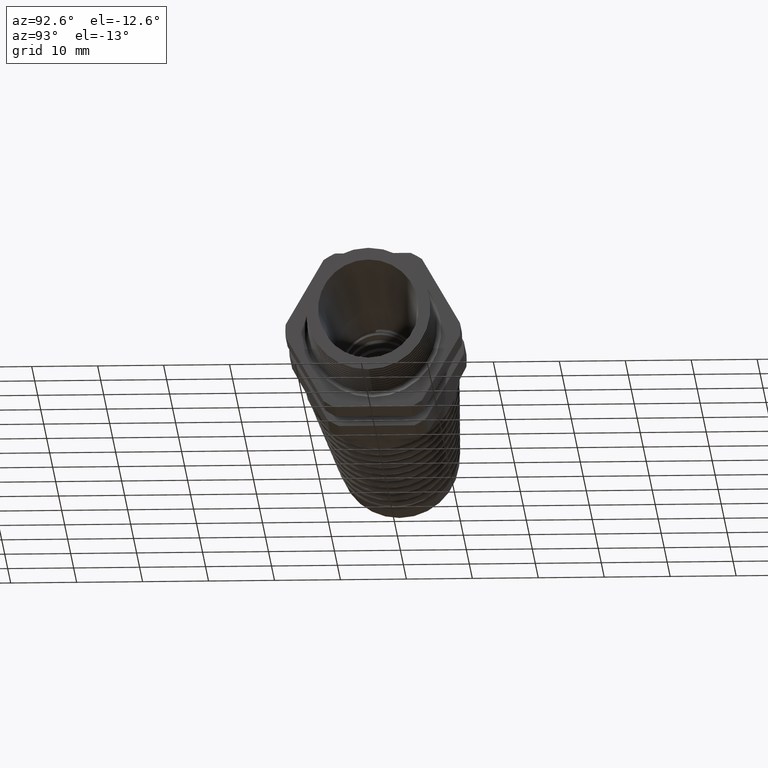
[diagram: clean part render]
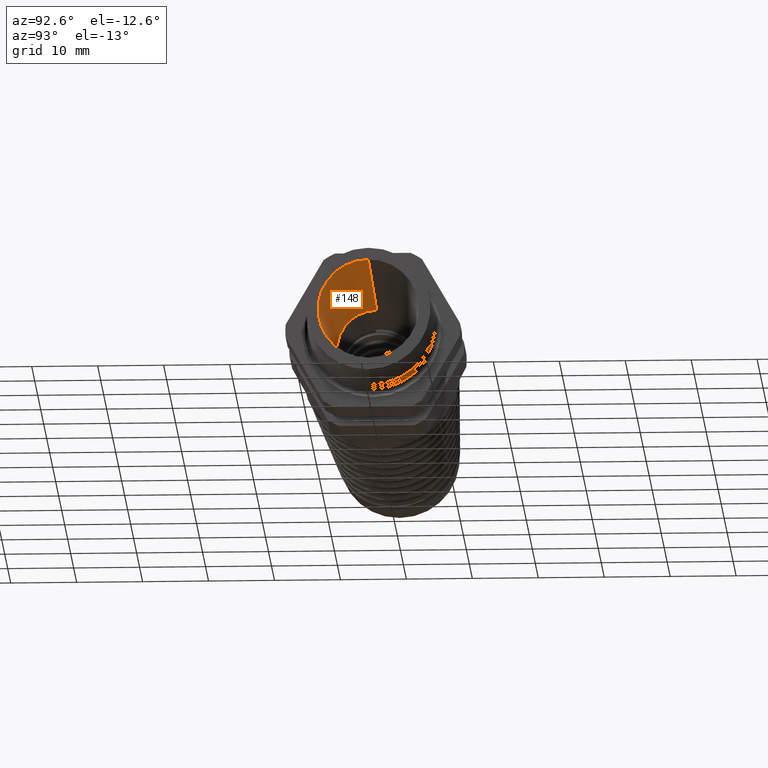
[diagram: same view with one face highlighted and labeled with its STEP entity id]
A machine part, auxiliary view. The second image highlights one B-rep face of the part: STEP entity #148.
In plain terms, the highlighted conical surface has half-angle 3.385 deg.
Its self-contained STEP definition (entity closure, byte-faithful):
#148 = ADVANCED_FACE ( 'NONE', ( #1611 ), #1610, .F. ) ;
#149 = EDGE_LOOP ( 'NONE', ( #150, #154, #230, #232 ) ) ;
#150 = ORIENTED_EDGE ( 'NONE', *, *, #151, .F. ) ;
#151 = EDGE_CURVE ( 'NONE', #152, #153, #1476, .T. ) ;
#152 = VERTEX_POINT ( 'NONE', #1573 ) ;
#153 = VERTEX_POINT ( 'NONE', #1572 ) ;
#154 = ORIENTED_EDGE ( 'NONE', *, *, #155, .T. ) ;
#155 = EDGE_CURVE ( 'NONE', #152, #156, #1571, .T. ) ;
#156 = VERTEX_POINT ( 'NONE', #1605 ) ;
#198 = VERTEX_POINT ( 'NONE', #1552 ) ;
#230 = ORIENTED_EDGE ( 'NONE', *, *, #231, .T. ) ;
#231 = EDGE_CURVE ( 'NONE', #156, #198, #1420, .T. ) ;
#232 = ORIENTED_EDGE ( 'NONE', *, *, #233, .F. ) ;
#233 = EDGE_CURVE ( 'NONE', #153, #198, #1415, .T. ) ;
#1415 = LINE ( 'NONE', #1421, #1546 ) ;
#1416 = DIRECTION ( 'NONE',  ( 0.0000000000000000000, 0.0000000000000000000, -1.000000000000000000 ) ) ;
#1417 = DIRECTION ( 'NONE',  ( 1.000000000000000000, 0.0000000000000000000, 0.0000000000000000000 ) ) ;
#1418 = CARTESIAN_POINT ( 'NONE',  ( 0.2800000000000000300, 0.0000000000000000000, 0.0000000000000000000 ) ) ;
#1419 = AXIS2_PLACEMENT_3D ( 'NONE', #1418, #1417, #1416 ) ;
#1420 = CIRCLE ( 'NONE', #1419, 0.3000000000000000400 ) ;
#1421 = CARTESIAN_POINT ( 'NONE',  ( -0.8188188976377951400, 0.0000000000000000000, -0.2350000000000000100 ) ) ;
#1473 = DIRECTION ( 'NONE',  ( 0.0000000000000000000, 0.0000000000000000000, -1.000000000000000000 ) ) ;
#1474 = DIRECTION ( 'NONE',  ( 1.000000000000000000, 0.0000000000000000000, 0.0000000000000000000 ) ) ;
#1475 = AXIS2_PLACEMENT_3D ( 'NONE', #1609, #1474, #1473 ) ;
#1476 = CIRCLE ( 'NONE', #1475, 0.2350000000000000100 ) ;
#1477 = DIRECTION ( 'NONE',  ( 0.0000000000000000000, 0.0000000000000000000, -1.000000000000000000 ) ) ;
#1545 = DIRECTION ( 'NONE',  ( 0.9982549554271934500, 0.0000000000000000000, -0.05905119782910416000 ) ) ;
#1546 = VECTOR ( 'NONE', #1545, 39.37007874015748900 ) ;
#1552 = CARTESIAN_POINT ( 'NONE',  ( 0.2800000000000000300, 0.0000000000000000000, -0.3000000000000000400 ) ) ;
#1568 = DIRECTION ( 'NONE',  ( 0.9982549554271934500, 7.231686040722954100E-018, 0.05905119782910416000 ) ) ;
#1569 = VECTOR ( 'NONE', #1568, 39.37007874015748900 ) ;
#1570 = CARTESIAN_POINT ( 'NONE',  ( -0.8188188976377951400, 2.877919977996280400E-017, 0.2350000000000000100 ) ) ;
#1571 = LINE ( 'NONE', #1570, #1569 ) ;
#1572 = CARTESIAN_POINT ( 'NONE',  ( -0.8188188976377951400, 0.0000000000000000000, -0.2350000000000000100 ) ) ;
#1573 = CARTESIAN_POINT ( 'NONE',  ( -0.8188188976377951400, 2.877919977996280400E-017, 0.2350000000000000100 ) ) ;
#1605 = CARTESIAN_POINT ( 'NONE',  ( 0.2800000000000000300, 3.673940397442060700E-017, 0.3000000000000000400 ) ) ;
#1606 = DIRECTION ( 'NONE',  ( 1.000000000000000000, 0.0000000000000000000, 0.0000000000000000000 ) ) ;
#1607 = CARTESIAN_POINT ( 'NONE',  ( -0.8188188976377951400, 0.0000000000000000000, 0.0000000000000000000 ) ) ;
#1608 = AXIS2_PLACEMENT_3D ( 'NONE', #1607, #1606, #1477 ) ;
#1609 = CARTESIAN_POINT ( 'NONE',  ( -0.8188188976377951400, 0.0000000000000000000, 0.0000000000000000000 ) ) ;
#1610 = CONICAL_SURFACE ( 'NONE', #1608, 0.2350000000000000100, 0.05908557081402041700 ) ;
#1611 = FACE_OUTER_BOUND ( 'NONE', #149, .T. ) ;